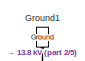
[diagram: root canvas - part 1/5, top left region]
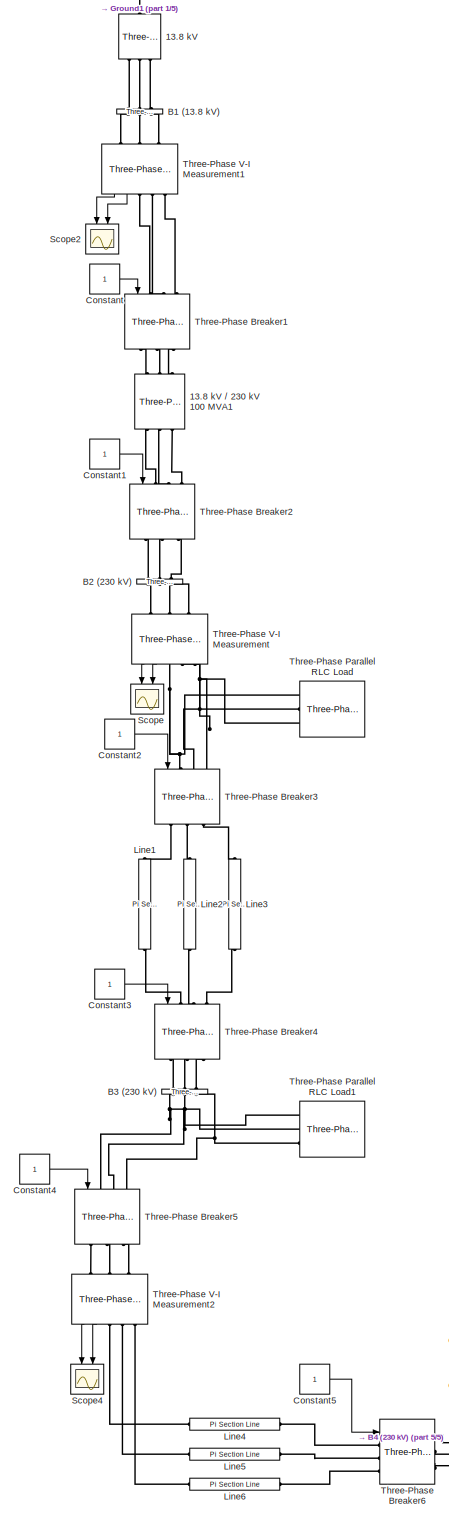
[diagram: root canvas - part 2/5, center side, full height]
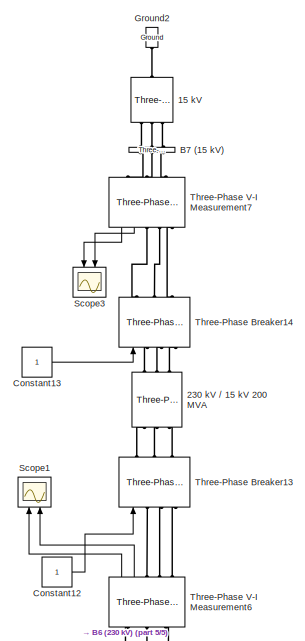
[diagram: root canvas - part 3/5, top right region]
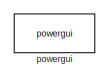
[diagram: root canvas - part 4/5, top left region]
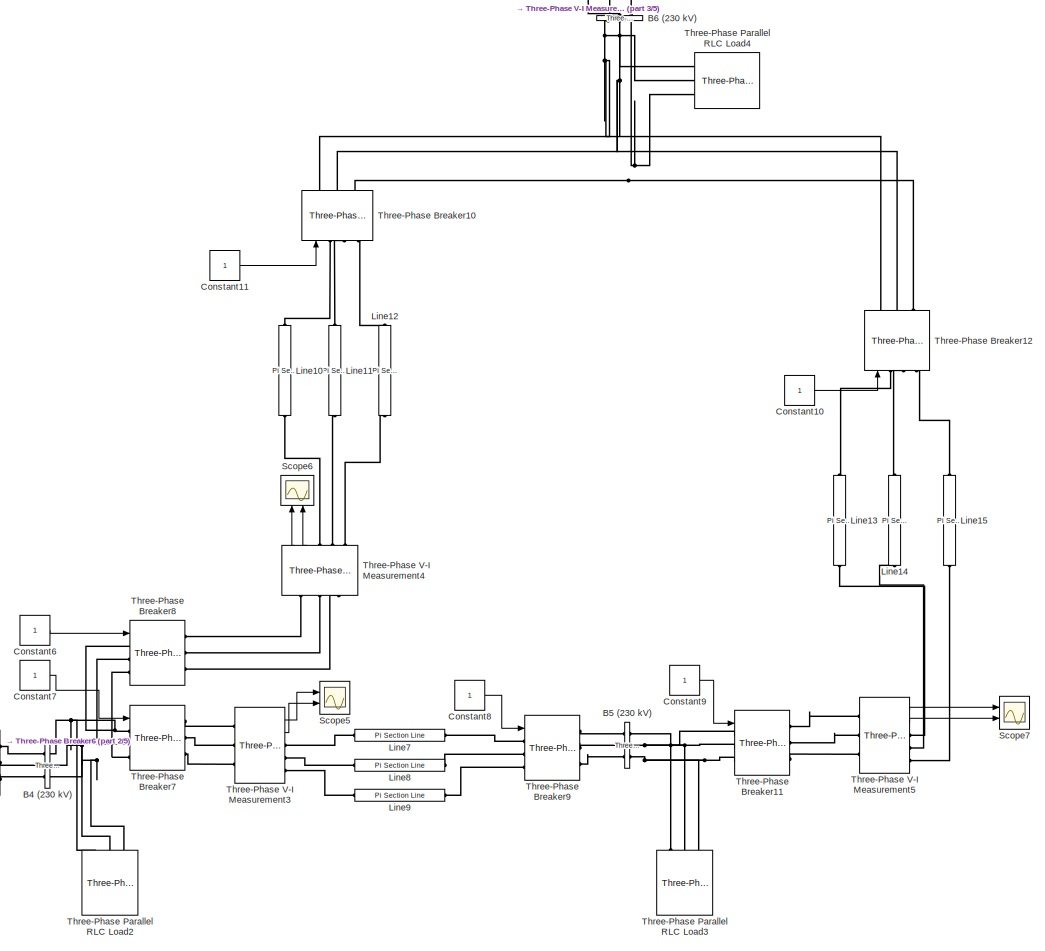
[diagram: root canvas - part 5/5, bottom right region]
MODEL slx_da5e4e727184
KIND model
BLOCK [Reference] 13.8 kV  REF=spsThreePhaseProgrammableVoltageSourceLib/Three-Phase
Programmable
Voltage Source
  Amplitudes = [1 0.75 1.0]
  BusType = PV
  HarmonicA = [1 -0.1 0 2]
  HarmonicB = [2 0.15 35 2]*0
  HarmonicGeneration = off
  Ports = [0, 0, 0, 0, 0, 1, 3]
  PositiveSequence = [13.8e3 0 60]
  Pref = 100e6
  Qmax = inf
  Qmin = -inf
  Qref = 0
  RTWMemSecDataConstants = Inherit from model
  RTWMemSecDataInternal = Inherit from model
  RTWMemSecDataParameters = Inherit from model
  RTWMemSecFuncExecute = Inherit from model
  RTWMemSecFuncInitTerm = Inherit from model
  SourceBlock = spsThreePhaseProgrammableVoltageSourceLib/Three-Phase\nProgrammable\nVoltage Source
  SourceType = Three-Phase Programmable Voltage Source
  TimeValues = [0 0.03 0.13]
  Timing = [0.1  2]
  VariationEntity = Amplitude
  VariationFrequency = 2
  VariationMagnitude = 0.3
  VariationPhaseA = off
  VariationRate = 10
  VariationStep = -0.2
  VariationTiming = [0.05 0.05+5/60]
  VariationType = Table of time-amplitude pairs
  VariationTypeAlt = Step
BLOCK [Reference] 13.8 kV // 230 kV 100 MVA1  REF=spsThreePhaseTransformerTwoWindingsLib/Three-Phase
Transformer
(Two Windings)
  AttributesFormatString = \n
  BreakLoop = off
  CoreType = Three single-phase transformers
  DataFile = 'basic_model'
  DataType = off
  DiscreteSolver = Trapezoidal iterative
  Hysteresis = off
  InitialFluxes = [ 0.8 , -0.8 , 0.7 ]
  L0 = 0.5
  Lm = 500
  Measurements = None
  NominalPower = [100e6 60 ]
  Ports = [0, 0, 0, 0, 0, 3, 3]
  RTWMemSecDataConstants = Inherit from model
  RTWMemSecDataInternal = Inherit from model
  RTWMemSecDataParameters = Inherit from model
  RTWMemSecFuncExecute = Inherit from model
  RTWMemSecFuncInitTerm = Inherit from model
  Rm = 500
  Saturation = [ 0,0  ;  0.005,1.2  ;  1.0,1.4 ]
  SetInitialFlux = off
  SetSaturation = off
  SourceBlock = spsThreePhaseTransformerTwoWindingsLib/Three-Phase\nTransformer\n(Two Windings)
  SourceType = Three-Phase Transformer (Two Windings)
  TransfoNumber = 0
  UNITS = pu
  Winding1 = [ 13.8e3  0.1/30   0.1 ]
  Winding1Connection = Delta (D1)
  Winding2 = [ 230e3  0.1/30  0.1]
  Winding2Connection = Yg
BLOCK [Reference] 15 kV  REF=spsThreePhaseProgrammableVoltageSourceLib/Three-Phase
Programmable
Voltage Source
  Amplitudes = [1 0.75 1.0]
  BusType = PQ
  HarmonicA = [1 -0.1 0 2]
  HarmonicB = [2 0.15 35 2]*0
  HarmonicGeneration = off
  Ports = [0, 0, 0, 0, 0, 1, 3]
  PositiveSequence = [15e3 0 60]
  Pref = 200e6
  Qmax = inf
  Qmin = -inf
  Qref = inf
  RTWMemSecDataConstants = Inherit from model
  RTWMemSecDataInternal = Inherit from model
  RTWMemSecDataParameters = Inherit from model
  RTWMemSecFuncExecute = Inherit from model
  RTWMemSecFuncInitTerm = Inherit from model
  SourceBlock = spsThreePhaseProgrammableVoltageSourceLib/Three-Phase\nProgrammable\nVoltage Source
  SourceType = Three-Phase Programmable Voltage Source
  TimeValues = [0 0.03 0.13]
  Timing = [0.1  2]
  VariationEntity = Amplitude
  VariationFrequency = 2
  VariationMagnitude = 0.3
  VariationPhaseA = off
  VariationRate = 10
  VariationStep = -0.2
  VariationTiming = [0.05 0.05+5/60]
  VariationType = Table of time-amplitude pairs
  VariationTypeAlt = Step
BLOCK [Reference] 230 kV // 15 kV 200 MVA  REF=spsThreePhaseTransformerTwoWindingsLib/Three-Phase
Transformer
(Two Windings)
  AttributesFormatString = \n
  BreakLoop = off
  CoreType = Three single-phase transformers
  DataFile = 'basic_model'
  DataType = off
  DiscreteSolver = Trapezoidal iterative
  Hysteresis = off
  InitialFluxes = [ 0.8 , -0.8 , 0.7 ]
  L0 = 0.5
  Lm = 500
  Measurements = None
  NominalPower = [200e6 60 ]
  Ports = [0, 0, 0, 0, 0, 3, 3]
  RTWMemSecDataConstants = Inherit from model
  RTWMemSecDataInternal = Inherit from model
  RTWMemSecDataParameters = Inherit from model
  RTWMemSecFuncExecute = Inherit from model
  RTWMemSecFuncInitTerm = Inherit from model
  Rm = 500
  Saturation = [ 0,0  ;  0.005,1.2  ;  1.0,1.4 ]
  SetInitialFlux = off
  SetSaturation = off
  SourceBlock = spsThreePhaseTransformerTwoWindingsLib/Three-Phase\nTransformer\n(Two Windings)
  SourceType = Three-Phase Transformer (Two Windings)
  TransfoNumber = 0
  UNITS = pu
  Winding1 = [ 15e3  0.1/30   0.1 ]
  Winding1Connection = Delta (D1)
  Winding2 = [ 230e3  0.1/30  0.1]
  Winding2Connection = Yg
BLOCK [Reference] B1 (13.8 kV)  REF=spsThreePhaseVIMeasurementLib/Three-Phase
V-I Measurement
  CurrentMeasurement = no
  Ipu = off
  LabelI = Iabc_B120
  LabelV = Vabc_B120
  OutputType = Complex
  PSBequivalent = 0
  Pbase = 100e6
  PhasorSimulation = off
  Ports = [0, 0, 0, 0, 0, 3, 3]
  RTWMemSecDataConstants = Inherit from model
  RTWMemSecDataInternal = Inherit from model
  RTWMemSecDataParameters = Inherit from model
  RTWMemSecFuncExecute = Inherit from model
  RTWMemSecFuncInitTerm = Inherit from model
  SetLabelI = on
  SetLabelV = off
  SourceBlock = spsThreePhaseVIMeasurementLib/Three-Phase\nV-I Measurement
  SourceType = Three-Phase VI Measurement
  Vbase = 120e3
  VoltageMeasurement = no
  Vpu = off
  VpuLL = off
BLOCK [Reference] B2 (230 kV)  REF=spsThreePhaseVIMeasurementLib/Three-Phase
V-I Measurement
  CurrentMeasurement = no
  Ipu = off
  LabelI = Iabc_B120
  LabelV = Vabc_B120
  OutputType = Complex
  PSBequivalent = 0
  Pbase = 100e6
  PhasorSimulation = off
  Ports = [0, 0, 0, 0, 0, 3, 3]
  RTWMemSecDataConstants = Inherit from model
  RTWMemSecDataInternal = Inherit from model
  RTWMemSecDataParameters = Inherit from model
  RTWMemSecFuncExecute = Inherit from model
  RTWMemSecFuncInitTerm = Inherit from model
  SetLabelI = on
  SetLabelV = off
  SourceBlock = spsThreePhaseVIMeasurementLib/Three-Phase\nV-I Measurement
  SourceType = Three-Phase VI Measurement
  Vbase = 120e3
  VoltageMeasurement = no
  Vpu = off
  VpuLL = off
BLOCK [Reference] B3 (230 kV)  REF=spsThreePhaseVIMeasurementLib/Three-Phase
V-I Measurement
  CurrentMeasurement = no
  Ipu = off
  LabelI = Iabc_B120
  LabelV = Vabc_B120
  OutputType = Complex
  PSBequivalent = 0
  Pbase = 100e6
  PhasorSimulation = off
  Ports = [0, 0, 0, 0, 0, 3, 3]
  RTWMemSecDataConstants = Inherit from model
  RTWMemSecDataInternal = Inherit from model
  RTWMemSecDataParameters = Inherit from model
  RTWMemSecFuncExecute = Inherit from model
  RTWMemSecFuncInitTerm = Inherit from model
  SetLabelI = on
  SetLabelV = off
  SourceBlock = spsThreePhaseVIMeasurementLib/Three-Phase\nV-I Measurement
  SourceType = Three-Phase VI Measurement
  Vbase = 120e3
  VoltageMeasurement = no
  Vpu = off
  VpuLL = off
BLOCK [Reference] B4 (230 kV)  REF=spsThreePhaseVIMeasurementLib/Three-Phase
V-I Measurement
  CurrentMeasurement = no
  Ipu = off
  LabelI = Iabc_B120
  LabelV = Vabc_B120
  OutputType = Complex
  PSBequivalent = 0
  Pbase = 100e6
  PhasorSimulation = off
  Ports = [0, 0, 0, 0, 0, 3, 3]
  RTWMemSecDataConstants = Inherit from model
  RTWMemSecDataInternal = Inherit from model
  RTWMemSecDataParameters = Inherit from model
  RTWMemSecFuncExecute = Inherit from model
  RTWMemSecFuncInitTerm = Inherit from model
  SetLabelI = on
  SetLabelV = off
  SourceBlock = spsThreePhaseVIMeasurementLib/Three-Phase\nV-I Measurement
  SourceType = Three-Phase VI Measurement
  Vbase = 120e3
  VoltageMeasurement = no
  Vpu = off
  VpuLL = off
BLOCK [Reference] B5 (230 kV)  REF=spsThreePhaseVIMeasurementLib/Three-Phase
V-I Measurement
  CurrentMeasurement = no
  Ipu = off
  LabelI = Iabc_B120
  LabelV = Vabc_B120
  OutputType = Complex
  PSBequivalent = 0
  Pbase = 100e6
  PhasorSimulation = off
  Ports = [0, 0, 0, 0, 0, 3, 3]
  RTWMemSecDataConstants = Inherit from model
  RTWMemSecDataInternal = Inherit from model
  RTWMemSecDataParameters = Inherit from model
  RTWMemSecFuncExecute = Inherit from model
  RTWMemSecFuncInitTerm = Inherit from model
  SetLabelI = on
  SetLabelV = off
  SourceBlock = spsThreePhaseVIMeasurementLib/Three-Phase\nV-I Measurement
  SourceType = Three-Phase VI Measurement
  Vbase = 120e3
  VoltageMeasurement = no
  Vpu = off
  VpuLL = off
BLOCK [Reference] B6 (230 kV)  REF=spsThreePhaseVIMeasurementLib/Three-Phase
V-I Measurement
  CurrentMeasurement = no
  Ipu = off
  LabelI = Iabc_B120
  LabelV = Vabc_B120
  OutputType = Complex
  PSBequivalent = 0
  Pbase = 100e6
  PhasorSimulation = off
  Ports = [0, 0, 0, 0, 0, 3, 3]
  RTWMemSecDataConstants = Inherit from model
  RTWMemSecDataInternal = Inherit from model
  RTWMemSecDataParameters = Inherit from model
  RTWMemSecFuncExecute = Inherit from model
  RTWMemSecFuncInitTerm = Inherit from model
  SetLabelI = on
  SetLabelV = off
  SourceBlock = spsThreePhaseVIMeasurementLib/Three-Phase\nV-I Measurement
  SourceType = Three-Phase VI Measurement
  Vbase = 120e3
  VoltageMeasurement = no
  Vpu = off
  VpuLL = off
BLOCK [Reference] B7 (15 kV)  REF=spsThreePhaseVIMeasurementLib/Three-Phase
V-I Measurement
  CurrentMeasurement = no
  Ipu = off
  LabelI = Iabc_B120
  LabelV = Vabc_B120
  OutputType = Complex
  PSBequivalent = 0
  Pbase = 100e6
  PhasorSimulation = off
  Ports = [0, 0, 0, 0, 0, 3, 3]
  RTWMemSecDataConstants = Inherit from model
  RTWMemSecDataInternal = Inherit from model
  RTWMemSecDataParameters = Inherit from model
  RTWMemSecFuncExecute = Inherit from model
  RTWMemSecFuncInitTerm = Inherit from model
  SetLabelI = on
  SetLabelV = off
  SourceBlock = spsThreePhaseVIMeasurementLib/Three-Phase\nV-I Measurement
  SourceType = Three-Phase VI Measurement
  Vbase = 120e3
  VoltageMeasurement = no
  Vpu = off
  VpuLL = off
BLOCK [Constant] Constant
BLOCK [Constant] Constant1
BLOCK [Constant] Constant10
BLOCK [Constant] Constant11
BLOCK [Constant] Constant12
BLOCK [Constant] Constant13
BLOCK [Constant] Constant2
BLOCK [Constant] Constant3
BLOCK [Constant] Constant4
BLOCK [Constant] Constant5
BLOCK [Constant] Constant6
BLOCK [Constant] Constant7
BLOCK [Constant] Constant8
BLOCK [Constant] Constant9
BLOCK [Reference] Ground1  REF=spsGroundLib/Ground
  AttributesFormatString = \n
  LConnTagsString = a
  Ports = [0, 0, 0, 0, 0, 1]
  SourceBlock = spsGroundLib/Ground
  SourceType = Ground
BLOCK [Reference] Ground2  REF=spsGroundLib/Ground
  AttributesFormatString = \n
  LConnTagsString = a
  Ports = [0, 0, 0, 0, 0, 1]
  SourceBlock = spsGroundLib/Ground
  SourceType = Ground
BLOCK [Reference] Line1  REF=spsPiSectionLineLib/Pi Section Line
  AttributesFormatString = \n
  Capacitance = 1e-6
  Frequency = 50
  Inductance = .0016
  LConnTagsString = __new0
  Length = 15
  Measurements = None
  Measurements2 = None
  Phases = 1
  PiSections = 2
  Ports = [0, 0, 0, 0, 0, 1, 1]
  RConnTagsString = __new0
  Resistance = .08
  SourceBlock = spsPiSectionLineLib/Pi Section Line
  SourceType = Pi Section Line
BLOCK [Reference] Line10  REF=spsPiSectionLineLib/Pi Section Line
  AttributesFormatString = \n
  Capacitance = 1e-6
  Frequency = 50
  Inductance = .0016
  LConnTagsString = __new0
  Length = 50
  Measurements = None
  Measurements2 = None
  Phases = 1
  PiSections = 2
  Ports = [0, 0, 0, 0, 0, 1, 1]
  RConnTagsString = __new0
  Resistance = .08
  SourceBlock = spsPiSectionLineLib/Pi Section Line
  SourceType = Pi Section Line
BLOCK [Reference] Line11  REF=spsPiSectionLineLib/Pi Section Line
  AttributesFormatString = \n
  Capacitance = 1e-6
  Frequency = 50
  Inductance = .0016
  LConnTagsString = __new0
  Length = 50
  Measurements = None
  Measurements2 = None
  Phases = 1
  PiSections = 2
  Ports = [0, 0, 0, 0, 0, 1, 1]
  RConnTagsString = __new0
  Resistance = .08
  SourceBlock = spsPiSectionLineLib/Pi Section Line
  SourceType = Pi Section Line
BLOCK [Reference] Line12  REF=spsPiSectionLineLib/Pi Section Line
  AttributesFormatString = \n
  Capacitance = 1e-6
  Frequency = 50
  Inductance = .0016
  LConnTagsString = __new0
  Length = 50
  Measurements = None
  Measurements2 = None
  Phases = 1
  PiSections = 2
  Ports = [0, 0, 0, 0, 0, 1, 1]
  RConnTagsString = __new0
  Resistance = .08
  SourceBlock = spsPiSectionLineLib/Pi Section Line
  SourceType = Pi Section Line
BLOCK [Reference] Line13  REF=spsPiSectionLineLib/Pi Section Line
  AttributesFormatString = \n
  Capacitance = 1e-6
  Frequency = 50
  Inductance = .0016
  LConnTagsString = __new0
  Length = 15
  Measurements = None
  Measurements2 = None
  Phases = 1
  PiSections = 2
  Ports = [0, 0, 0, 0, 0, 1, 1]
  RConnTagsString = __new0
  Resistance = .08
  SourceBlock = spsPiSectionLineLib/Pi Section Line
  SourceType = Pi Section Line
BLOCK [Reference] Line14  REF=spsPiSectionLineLib/Pi Section Line
  AttributesFormatString = \n
  Capacitance = 1e-6
  Frequency = 50
  Inductance = .0016
  LConnTagsString = __new0
  Length = 15
  Measurements = None
  Measurements2 = None
  Phases = 1
  PiSections = 2
  Ports = [0, 0, 0, 0, 0, 1, 1]
  RConnTagsString = __new0
  Resistance = .08
  SourceBlock = spsPiSectionLineLib/Pi Section Line
  SourceType = Pi Section Line
BLOCK [Reference] Line15  REF=spsPiSectionLineLib/Pi Section Line
  AttributesFormatString = \n
  Capacitance = 1e-6
  Frequency = 50
  Inductance = .0016
  LConnTagsString = __new0
  Length = 15
  Measurements = None
  Measurements2 = None
  Phases = 1
  PiSections = 2
  Ports = [0, 0, 0, 0, 0, 1, 1]
  RConnTagsString = __new0
  Resistance = .08
  SourceBlock = spsPiSectionLineLib/Pi Section Line
  SourceType = Pi Section Line
BLOCK [Reference] Line2  REF=spsPiSectionLineLib/Pi Section Line
  AttributesFormatString = \n
  Capacitance = 1e-6
  Frequency = 50
  Inductance = .0016
  LConnTagsString = __new0
  Length = 15
  Measurements = None
  Measurements2 = None
  Phases = 1
  PiSections = 2
  Ports = [0, 0, 0, 0, 0, 1, 1]
  RConnTagsString = __new0
  Resistance = .08
  SourceBlock = spsPiSectionLineLib/Pi Section Line
  SourceType = Pi Section Line
BLOCK [Reference] Line3  REF=spsPiSectionLineLib/Pi Section Line
  AttributesFormatString = \n
  Capacitance = 1e-6
  Frequency = 50
  Inductance = .0016
  LConnTagsString = __new0
  Length = 15
  Measurements = None
  Measurements2 = None
  Phases = 1
  PiSections = 2
  Ports = [0, 0, 0, 0, 0, 1, 1]
  RConnTagsString = __new0
  Resistance = .08
  SourceBlock = spsPiSectionLineLib/Pi Section Line
  SourceType = Pi Section Line
BLOCK [Reference] Line4  REF=spsPiSectionLineLib/Pi Section Line
  AttributesFormatString = \n
  Capacitance = 1e-6
  Frequency = 50
  Inductance = .0016
  LConnTagsString = __new0
  Length = 30
  Measurements = None
  Measurements2 = None
  Phases = 1
  PiSections = 2
  Ports = [0, 0, 0, 0, 0, 1, 1]
  RConnTagsString = __new0
  Resistance = .08
  SourceBlock = spsPiSectionLineLib/Pi Section Line
  SourceType = Pi Section Line
BLOCK [Reference] Line5  REF=spsPiSectionLineLib/Pi Section Line
  AttributesFormatString = \n
  Capacitance = 1e-6
  Frequency = 50
  Inductance = .0016
  LConnTagsString = __new0
  Length = 30
  Measurements = None
  Measurements2 = None
  Phases = 1
  PiSections = 2
  Ports = [0, 0, 0, 0, 0, 1, 1]
  RConnTagsString = __new0
  Resistance = .08
  SourceBlock = spsPiSectionLineLib/Pi Section Line
  SourceType = Pi Section Line
BLOCK [Reference] Line6  REF=spsPiSectionLineLib/Pi Section Line
  AttributesFormatString = \n
  Capacitance = 1e-6
  Frequency = 50
  Inductance = .0016
  LConnTagsString = __new0
  Length = 30
  Measurements = None
  Measurements2 = None
  Phases = 1
  PiSections = 2
  Ports = [0, 0, 0, 0, 0, 1, 1]
  RConnTagsString = __new0
  Resistance = .08
  SourceBlock = spsPiSectionLineLib/Pi Section Line
  SourceType = Pi Section Line
BLOCK [Reference] Line7  REF=spsPiSectionLineLib/Pi Section Line
  AttributesFormatString = \n
  Capacitance = 1e-6
  Frequency = 50
  Inductance = .0016
  LConnTagsString = __new0
  Length = 40
  Measurements = None
  Measurements2 = None
  Phases = 1
  PiSections = 2
  Ports = [0, 0, 0, 0, 0, 1, 1]
  RConnTagsString = __new0
  Resistance = .08
  SourceBlock = spsPiSectionLineLib/Pi Section Line
  SourceType = Pi Section Line
BLOCK [Reference] Line8  REF=spsPiSectionLineLib/Pi Section Line
  AttributesFormatString = \n
  Capacitance = 1e-6
  Frequency = 50
  Inductance = .0016
  LConnTagsString = __new0
  Length = 40
  Measurements = None
  Measurements2 = None
  Phases = 1
  PiSections = 2
  Ports = [0, 0, 0, 0, 0, 1, 1]
  RConnTagsString = __new0
  Resistance = .08
  SourceBlock = spsPiSectionLineLib/Pi Section Line
  SourceType = Pi Section Line
BLOCK [Reference] Line9  REF=spsPiSectionLineLib/Pi Section Line
  AttributesFormatString = \n
  Capacitance = 1e-6
  Frequency = 50
  Inductance = .0016
  LConnTagsString = __new0
  Length = 40
  Measurements = None
  Measurements2 = None
  Phases = 1
  PiSections = 2
  Ports = [0, 0, 0, 0, 0, 1, 1]
  RConnTagsString = __new0
  Resistance = .08
  SourceBlock = spsPiSectionLineLib/Pi Section Line
  SourceType = Pi Section Line
BLOCK [Scope] Scope
  DataFormat = StructureWithTime
  Decimation = 1
  Floating = off
  Grid = on
  LimitDataPoints = off
  MaxDataPoints = 5000
  NumInputPorts = 2
  Ports = [2]
  SampleInput = off
  SampleTime = -1
  SaveName = ScopeData1
  SaveToWorkspace = off
  ShowLegends = off
  TickLabels = OneTimeTick
  TimeRange = auto
  YMax = 5~5
  YMin = -5~-5
  ZoomMode = on
BLOCK [Scope] Scope1
  DataFormat = StructureWithTime
  Decimation = 1
  Floating = off
  Grid = on
  LimitDataPoints = off
  MaxDataPoints = 5000
  NumInputPorts = 2
  Ports = [2]
  SampleInput = off
  SampleTime = -1
  SaveName = ScopeData2
  SaveToWorkspace = off
  ShowLegends = off
  TickLabels = OneTimeTick
  TimeRange = auto
  YMax = 5~5
  YMin = -5~-5
  ZoomMode = on
BLOCK [Scope] Scope2
  DataFormat = StructureWithTime
  Decimation = 1
  Floating = off
  Grid = on
  LimitDataPoints = off
  MaxDataPoints = 5000
  NumInputPorts = 2
  Ports = [2]
  SampleInput = off
  SampleTime = -1
  SaveName = ScopeData3
  SaveToWorkspace = off
  ShowLegends = off
  TickLabels = OneTimeTick
  TimeRange = auto
  YMax = 24395.18395~68433.69318
  YMin = -24395.18395~-69245.32679
  ZoomMode = on
BLOCK [Scope] Scope3
  DataFormat = StructureWithTime
  Decimation = 1
  Floating = off
  Grid = on
  LimitDataPoints = off
  MaxDataPoints = 5000
  NumInputPorts = 2
  Ports = [2]
  SampleInput = off
  SampleTime = -1
  SaveName = ScopeData4
  SaveToWorkspace = off
  ShowLegends = off
  TickLabels = OneTimeTick
  TimeRange = auto
  YMax = 5~5
  YMin = -5~-5
  ZoomMode = on
BLOCK [Scope] Scope4
  DataFormat = StructureWithTime
  Decimation = 1
  Floating = off
  Grid = on
  LimitDataPoints = off
  MaxDataPoints = 5000
  NumInputPorts = 2
  Ports = [2]
  SampleInput = off
  SampleTime = -1
  SaveName = ScopeData5
  SaveToWorkspace = off
  ShowLegends = off
  TickLabels = OneTimeTick
  TimeRange = auto
  YMax = 5~5
  YMin = -5~-5
  ZoomMode = on
BLOCK [Scope] Scope5
  DataFormat = StructureWithTime
  Decimation = 1
  Floating = off
  Grid = on
  LimitDataPoints = off
  MaxDataPoints = 5000
  NumInputPorts = 2
  Ports = [2]
  SampleInput = off
  SampleTime = -1
  SaveName = ScopeData6
  SaveToWorkspace = off
  ShowLegends = off
  TickLabels = OneTimeTick
  TimeRange = auto
  YMax = 5~5
  YMin = -5~-5
  ZoomMode = on
BLOCK [Scope] Scope6
  DataFormat = StructureWithTime
  Decimation = 1
  Floating = off
  Grid = on
  LimitDataPoints = off
  MaxDataPoints = 5000
  NumInputPorts = 2
  Ports = [2]
  SampleInput = off
  SampleTime = -1
  SaveName = ScopeData7
  SaveToWorkspace = off
  ShowLegends = off
  TickLabels = OneTimeTick
  TimeRange = auto
  YMax = 5~5
  YMin = -5~-5
  ZoomMode = on
BLOCK [Scope] Scope7
  DataFormat = StructureWithTime
  Decimation = 1
  Floating = off
  Grid = on
  LimitDataPoints = off
  MaxDataPoints = 5000
  NumInputPorts = 2
  Ports = [2]
  SampleInput = off
  SampleTime = -1
  SaveName = ScopeData
  SaveToWorkspace = off
  ShowLegends = off
  TickLabels = OneTimeTick
  TimeRange = auto
  YMax = 5~5
  YMin = -5~-5
  ZoomMode = on
BLOCK [Reference] Three-Phase Breaker1  REF=spsThreePhaseBreakerLib/Three-Phase Breaker
  BreakerResistance = 0.001
  External = on
  InitialState = closed
  Measurements = None
  Ports = [1, 0, 0, 0, 0, 3, 3]
  RTWMemSecDataConstants = Inherit from model
  RTWMemSecDataInternal = Inherit from model
  RTWMemSecDataParameters = Inherit from model
  RTWMemSecFuncExecute = Inherit from model
  RTWMemSecFuncInitTerm = Inherit from model
  SnubberCapacitance = inf
  SnubberResistance = 1e6
  SourceBlock = spsThreePhaseBreakerLib/Three-Phase Breaker
  SourceType = Three-Phase Breaker
  SwitchA = on
  SwitchB = on
  SwitchC = on
  SwitchTimes = [4/60  10/60]
BLOCK [Reference] Three-Phase Breaker10  REF=spsThreePhaseBreakerLib/Three-Phase Breaker
  BreakerResistance = 0.001
  External = on
  InitialState = closed
  Measurements = None
  Ports = [1, 0, 0, 0, 0, 3, 3]
  RTWMemSecDataConstants = Inherit from model
  RTWMemSecDataInternal = Inherit from model
  RTWMemSecDataParameters = Inherit from model
  RTWMemSecFuncExecute = Inherit from model
  RTWMemSecFuncInitTerm = Inherit from model
  SnubberCapacitance = inf
  SnubberResistance = 1e6
  SourceBlock = spsThreePhaseBreakerLib/Three-Phase Breaker
  SourceType = Three-Phase Breaker
  SwitchA = on
  SwitchB = on
  SwitchC = on
  SwitchTimes = [4/60  10/60]
BLOCK [Reference] Three-Phase Breaker11  REF=spsThreePhaseBreakerLib/Three-Phase Breaker
  BreakerResistance = 0.001
  External = on
  InitialState = closed
  Measurements = None
  Ports = [1, 0, 0, 0, 0, 3, 3]
  RTWMemSecDataConstants = Inherit from model
  RTWMemSecDataInternal = Inherit from model
  RTWMemSecDataParameters = Inherit from model
  RTWMemSecFuncExecute = Inherit from model
  RTWMemSecFuncInitTerm = Inherit from model
  SnubberCapacitance = inf
  SnubberResistance = 1e6
  SourceBlock = spsThreePhaseBreakerLib/Three-Phase Breaker
  SourceType = Three-Phase Breaker
  SwitchA = on
  SwitchB = on
  SwitchC = on
  SwitchTimes = [4/60  10/60]
BLOCK [Reference] Three-Phase Breaker12  REF=spsThreePhaseBreakerLib/Three-Phase Breaker
  BreakerResistance = 0.001
  External = on
  InitialState = closed
  Measurements = None
  Ports = [1, 0, 0, 0, 0, 3, 3]
  RTWMemSecDataConstants = Inherit from model
  RTWMemSecDataInternal = Inherit from model
  RTWMemSecDataParameters = Inherit from model
  RTWMemSecFuncExecute = Inherit from model
  RTWMemSecFuncInitTerm = Inherit from model
  SnubberCapacitance = inf
  SnubberResistance = 1e6
  SourceBlock = spsThreePhaseBreakerLib/Three-Phase Breaker
  SourceType = Three-Phase Breaker
  SwitchA = on
  SwitchB = on
  SwitchC = on
  SwitchTimes = [4/60  10/60]
BLOCK [Reference] Three-Phase Breaker13  REF=spsThreePhaseBreakerLib/Three-Phase Breaker
  BreakerResistance = 0.001
  External = on
  InitialState = closed
  Measurements = None
  Ports = [1, 0, 0, 0, 0, 3, 3]
  RTWMemSecDataConstants = Inherit from model
  RTWMemSecDataInternal = Inherit from model
  RTWMemSecDataParameters = Inherit from model
  RTWMemSecFuncExecute = Inherit from model
  RTWMemSecFuncInitTerm = Inherit from model
  SnubberCapacitance = inf
  SnubberResistance = 1e6
  SourceBlock = spsThreePhaseBreakerLib/Three-Phase Breaker
  SourceType = Three-Phase Breaker
  SwitchA = on
  SwitchB = on
  SwitchC = on
  SwitchTimes = [4/60  10/60]
BLOCK [Reference] Three-Phase Breaker14  REF=spsThreePhaseBreakerLib/Three-Phase Breaker
  BreakerResistance = 0.001
  External = on
  InitialState = closed
  Measurements = None
  Ports = [1, 0, 0, 0, 0, 3, 3]
  RTWMemSecDataConstants = Inherit from model
  RTWMemSecDataInternal = Inherit from model
  RTWMemSecDataParameters = Inherit from model
  RTWMemSecFuncExecute = Inherit from model
  RTWMemSecFuncInitTerm = Inherit from model
  SnubberCapacitance = inf
  SnubberResistance = 1e6
  SourceBlock = spsThreePhaseBreakerLib/Three-Phase Breaker
  SourceType = Three-Phase Breaker
  SwitchA = on
  SwitchB = on
  SwitchC = on
  SwitchTimes = [4/60  10/60]
BLOCK [Reference] Three-Phase Breaker2  REF=spsThreePhaseBreakerLib/Three-Phase Breaker
  BreakerResistance = 0.001
  External = on
  InitialState = closed
  Measurements = None
  Ports = [1, 0, 0, 0, 0, 3, 3]
  RTWMemSecDataConstants = Inherit from model
  RTWMemSecDataInternal = Inherit from model
  RTWMemSecDataParameters = Inherit from model
  RTWMemSecFuncExecute = Inherit from model
  RTWMemSecFuncInitTerm = Inherit from model
  SnubberCapacitance = inf
  SnubberResistance = 1e6
  SourceBlock = spsThreePhaseBreakerLib/Three-Phase Breaker
  SourceType = Three-Phase Breaker
  SwitchA = on
  SwitchB = on
  SwitchC = on
  SwitchTimes = [4/60  10/60]
BLOCK [Reference] Three-Phase Breaker3  REF=spsThreePhaseBreakerLib/Three-Phase Breaker
  BreakerResistance = 0.001
  External = on
  InitialState = closed
  Measurements = None
  Ports = [1, 0, 0, 0, 0, 3, 3]
  RTWMemSecDataConstants = Inherit from model
  RTWMemSecDataInternal = Inherit from model
  RTWMemSecDataParameters = Inherit from model
  RTWMemSecFuncExecute = Inherit from model
  RTWMemSecFuncInitTerm = Inherit from model
  SnubberCapacitance = inf
  SnubberResistance = 1e6
  SourceBlock = spsThreePhaseBreakerLib/Three-Phase Breaker
  SourceType = Three-Phase Breaker
  SwitchA = on
  SwitchB = on
  SwitchC = on
  SwitchTimes = [4/60  10/60]
BLOCK [Reference] Three-Phase Breaker4  REF=spsThreePhaseBreakerLib/Three-Phase Breaker
  BreakerResistance = 0.001
  External = on
  InitialState = closed
  Measurements = None
  Ports = [1, 0, 0, 0, 0, 3, 3]
  RTWMemSecDataConstants = Inherit from model
  RTWMemSecDataInternal = Inherit from model
  RTWMemSecDataParameters = Inherit from model
  RTWMemSecFuncExecute = Inherit from model
  RTWMemSecFuncInitTerm = Inherit from model
  SnubberCapacitance = inf
  SnubberResistance = 1e6
  SourceBlock = spsThreePhaseBreakerLib/Three-Phase Breaker
  SourceType = Three-Phase Breaker
  SwitchA = on
  SwitchB = on
  SwitchC = on
  SwitchTimes = [4/60  10/60]
BLOCK [Reference] Three-Phase Breaker5  REF=spsThreePhaseBreakerLib/Three-Phase Breaker
  BreakerResistance = 0.001
  External = on
  InitialState = closed
  Measurements = None
  Ports = [1, 0, 0, 0, 0, 3, 3]
  RTWMemSecDataConstants = Inherit from model
  RTWMemSecDataInternal = Inherit from model
  RTWMemSecDataParameters = Inherit from model
  RTWMemSecFuncExecute = Inherit from model
  RTWMemSecFuncInitTerm = Inherit from model
  SnubberCapacitance = inf
  SnubberResistance = 1e6
  SourceBlock = spsThreePhaseBreakerLib/Three-Phase Breaker
  SourceType = Three-Phase Breaker
  SwitchA = on
  SwitchB = on
  SwitchC = on
  SwitchTimes = [4/60  10/60]
BLOCK [Reference] Three-Phase Breaker6  REF=spsThreePhaseBreakerLib/Three-Phase Breaker
  BreakerResistance = 0.001
  External = on
  InitialState = closed
  Measurements = None
  Ports = [1, 0, 0, 0, 0, 3, 3]
  RTWMemSecDataConstants = Inherit from model
  RTWMemSecDataInternal = Inherit from model
  RTWMemSecDataParameters = Inherit from model
  RTWMemSecFuncExecute = Inherit from model
  RTWMemSecFuncInitTerm = Inherit from model
  SnubberCapacitance = inf
  SnubberResistance = 1e6
  SourceBlock = spsThreePhaseBreakerLib/Three-Phase Breaker
  SourceType = Three-Phase Breaker
  SwitchA = on
  SwitchB = on
  SwitchC = on
  SwitchTimes = [4/60  10/60]
BLOCK [Reference] Three-Phase Breaker7  REF=spsThreePhaseBreakerLib/Three-Phase Breaker
  BreakerResistance = 0.001
  External = on
  InitialState = closed
  Measurements = None
  Ports = [1, 0, 0, 0, 0, 3, 3]
  RTWMemSecDataConstants = Inherit from model
  RTWMemSecDataInternal = Inherit from model
  RTWMemSecDataParameters = Inherit from model
  RTWMemSecFuncExecute = Inherit from model
  RTWMemSecFuncInitTerm = Inherit from model
  SnubberCapacitance = inf
  SnubberResistance = 1e6
  SourceBlock = spsThreePhaseBreakerLib/Three-Phase Breaker
  SourceType = Three-Phase Breaker
  SwitchA = on
  SwitchB = on
  SwitchC = on
  SwitchTimes = [4/60  10/60]
BLOCK [Reference] Three-Phase Breaker8  REF=spsThreePhaseBreakerLib/Three-Phase Breaker
  BreakerResistance = 0.001
  External = on
  InitialState = closed
  Measurements = None
  Ports = [1, 0, 0, 0, 0, 3, 3]
  RTWMemSecDataConstants = Inherit from model
  RTWMemSecDataInternal = Inherit from model
  RTWMemSecDataParameters = Inherit from model
  RTWMemSecFuncExecute = Inherit from model
  RTWMemSecFuncInitTerm = Inherit from model
  SnubberCapacitance = inf
  SnubberResistance = 1e6
  SourceBlock = spsThreePhaseBreakerLib/Three-Phase Breaker
  SourceType = Three-Phase Breaker
  SwitchA = on
  SwitchB = on
  SwitchC = on
  SwitchTimes = [4/60  10/60]
BLOCK [Reference] Three-Phase Breaker9  REF=spsThreePhaseBreakerLib/Three-Phase Breaker
  BreakerResistance = 0.001
  External = on
  InitialState = closed
  Measurements = None
  Ports = [1, 0, 0, 0, 0, 3, 3]
  RTWMemSecDataConstants = Inherit from model
  RTWMemSecDataInternal = Inherit from model
  RTWMemSecDataParameters = Inherit from model
  RTWMemSecFuncExecute = Inherit from model
  RTWMemSecFuncInitTerm = Inherit from model
  SnubberCapacitance = inf
  SnubberResistance = 1e6
  SourceBlock = spsThreePhaseBreakerLib/Three-Phase Breaker
  SourceType = Three-Phase Breaker
  SwitchA = on
  SwitchB = on
  SwitchC = on
  SwitchTimes = [4/60  10/60]
BLOCK [Reference] Three-Phase Parallel RLC Load  REF=spsThreePhaseParallelRLCLoadLib/Three-Phase
Parallel RLC Load
  ActivePower = 50e3
  AttributesFormatString = \n
  CapacitivePower = 0
  Configuration = Y (grounded)
  InductivePower = 30e3
  LConnTagsString = A|B|C
  LoadType = constant Z
  Measurements = None
  NominalFrequency = 60
  NominalVoltage = 230e3
  Pabc = [10e3 9e3 11e3]
  Pabcp = [10e3 9e3 11e3]
  Ports = [0, 0, 0, 0, 0, 3]
  QCabc = [100 90 110]
  QCabcp = [100 90 110]
  QLabc = [100 90 110]
  QLabcp = [100 90 110]
  SourceBlock = spsThreePhaseParallelRLCLoadLib/Three-Phase\nParallel RLC Load
  SourceType = Three-Phase Parallel RLC Load
  UnbalancedPower = off
  Vabc = [1e3 1e3 1e3]
  Vabcp = [1e3 1e3 1e3]
BLOCK [Reference] Three-Phase Parallel RLC Load1  REF=spsThreePhaseParallelRLCLoadLib/Three-Phase
Parallel RLC Load
  ActivePower = 50e3
  AttributesFormatString = \n
  CapacitivePower = 0
  Configuration = Y (grounded)
  InductivePower = 30e3
  LConnTagsString = A|B|C
  LoadType = constant Z
  Measurements = None
  NominalFrequency = 60
  NominalVoltage = 230e3
  Pabc = [10e3 9e3 11e3]
  Pabcp = [10e3 9e3 11e3]
  Ports = [0, 0, 0, 0, 0, 3]
  QCabc = [100 90 110]
  QCabcp = [100 90 110]
  QLabc = [100 90 110]
  QLabcp = [100 90 110]
  SourceBlock = spsThreePhaseParallelRLCLoadLib/Three-Phase\nParallel RLC Load
  SourceType = Three-Phase Parallel RLC Load
  UnbalancedPower = off
  Vabc = [1e3 1e3 1e3]
  Vabcp = [1e3 1e3 1e3]
BLOCK [Reference] Three-Phase Parallel RLC Load2  REF=spsThreePhaseParallelRLCLoadLib/Three-Phase
Parallel RLC Load
  ActivePower = 50e3
  AttributesFormatString = \n
  CapacitivePower = 0
  Configuration = Y (grounded)
  InductivePower = 30e3
  LConnTagsString = A|B|C
  LoadType = constant Z
  Measurements = None
  NominalFrequency = 60
  NominalVoltage = 230e3
  Pabc = [10e3 9e3 11e3]
  Pabcp = [10e3 9e3 11e3]
  Ports = [0, 0, 0, 0, 0, 3]
  QCabc = [100 90 110]
  QCabcp = [100 90 110]
  QLabc = [100 90 110]
  QLabcp = [100 90 110]
  SourceBlock = spsThreePhaseParallelRLCLoadLib/Three-Phase\nParallel RLC Load
  SourceType = Three-Phase Parallel RLC Load
  UnbalancedPower = off
  Vabc = [1e3 1e3 1e3]
  Vabcp = [1e3 1e3 1e3]
BLOCK [Reference] Three-Phase Parallel RLC Load3  REF=spsThreePhaseParallelRLCLoadLib/Three-Phase
Parallel RLC Load
  ActivePower = 50e3
  AttributesFormatString = \n
  CapacitivePower = 0
  Configuration = Y (grounded)
  InductivePower = 30e3
  LConnTagsString = A|B|C
  LoadType = constant Z
  Measurements = None
  NominalFrequency = 60
  NominalVoltage = 230e3
  Pabc = [10e3 9e3 11e3]
  Pabcp = [10e3 9e3 11e3]
  Ports = [0, 0, 0, 0, 0, 3]
  QCabc = [100 90 110]
  QCabcp = [100 90 110]
  QLabc = [100 90 110]
  QLabcp = [100 90 110]
  SourceBlock = spsThreePhaseParallelRLCLoadLib/Three-Phase\nParallel RLC Load
  SourceType = Three-Phase Parallel RLC Load
  UnbalancedPower = off
  Vabc = [1e3 1e3 1e3]
  Vabcp = [1e3 1e3 1e3]
BLOCK [Reference] Three-Phase Parallel RLC Load4  REF=spsThreePhaseParallelRLCLoadLib/Three-Phase
Parallel RLC Load
  ActivePower = 50e3
  AttributesFormatString = \n
  CapacitivePower = 0
  Configuration = Y (grounded)
  InductivePower = 30e3
  LConnTagsString = A|B|C
  LoadType = constant Z
  Measurements = None
  NominalFrequency = 60
  NominalVoltage = 230e3
  Pabc = [10e3 9e3 11e3]
  Pabcp = [10e3 9e3 11e3]
  Ports = [0, 0, 0, 0, 0, 3]
  QCabc = [100 90 110]
  QCabcp = [100 90 110]
  QLabc = [100 90 110]
  QLabcp = [100 90 110]
  SourceBlock = spsThreePhaseParallelRLCLoadLib/Three-Phase\nParallel RLC Load
  SourceType = Three-Phase Parallel RLC Load
  UnbalancedPower = off
  Vabc = [1e3 1e3 1e3]
  Vabcp = [1e3 1e3 1e3]
BLOCK [Reference] Three-Phase V-I Measurement  REF=spsThreePhaseVIMeasurementLib/Three-Phase
V-I Measurement
  CurrentMeasurement = yes
  Ipu = off
  LabelI = Iabc
  LabelV = Vabc
  OutputType = Complex
  PSBequivalent = 0
  Pbase = 100e6
  PhasorSimulation = off
  Ports = [0, 2, 0, 0, 0, 3, 3]
  RTWMemSecDataConstants = Inherit from model
  RTWMemSecDataInternal = Inherit from model
  RTWMemSecDataParameters = Inherit from model
  RTWMemSecFuncExecute = Inherit from model
  RTWMemSecFuncInitTerm = Inherit from model
  SetLabelI = off
  SetLabelV = off
  SourceBlock = spsThreePhaseVIMeasurementLib/Three-Phase\nV-I Measurement
  SourceType = Three-Phase VI Measurement
  Vbase = 500e3
  VoltageMeasurement = phase-to-phase
  Vpu = off
  VpuLL = off
BLOCK [Reference] Three-Phase V-I Measurement1  REF=spsThreePhaseVIMeasurementLib/Three-Phase
V-I Measurement
  CurrentMeasurement = yes
  Ipu = off
  LabelI = Iabc
  LabelV = Vabc
  OutputType = Complex
  PSBequivalent = 0
  Pbase = 100e6
  PhasorSimulation = off
  Ports = [0, 2, 0, 0, 0, 3, 3]
  RTWMemSecDataConstants = Inherit from model
  RTWMemSecDataInternal = Inherit from model
  RTWMemSecDataParameters = Inherit from model
  RTWMemSecFuncExecute = Inherit from model
  RTWMemSecFuncInitTerm = Inherit from model
  SetLabelI = off
  SetLabelV = off
  SourceBlock = spsThreePhaseVIMeasurementLib/Three-Phase\nV-I Measurement
  SourceType = Three-Phase VI Measurement
  Vbase = 500e3
  VoltageMeasurement = phase-to-phase
  Vpu = off
  VpuLL = off
BLOCK [Reference] Three-Phase V-I Measurement2  REF=spsThreePhaseVIMeasurementLib/Three-Phase
V-I Measurement
  CurrentMeasurement = yes
  Ipu = off
  LabelI = Iabc
  LabelV = Vabc
  OutputType = Complex
  PSBequivalent = 0
  Pbase = 100e6
  PhasorSimulation = off
  Ports = [0, 2, 0, 0, 0, 3, 3]
  RTWMemSecDataConstants = Inherit from model
  RTWMemSecDataInternal = Inherit from model
  RTWMemSecDataParameters = Inherit from model
  RTWMemSecFuncExecute = Inherit from model
  RTWMemSecFuncInitTerm = Inherit from model
  SetLabelI = off
  SetLabelV = off
  SourceBlock = spsThreePhaseVIMeasurementLib/Three-Phase\nV-I Measurement
  SourceType = Three-Phase VI Measurement
  Vbase = 500e3
  VoltageMeasurement = phase-to-phase
  Vpu = off
  VpuLL = off
BLOCK [Reference] Three-Phase V-I Measurement3  REF=spsThreePhaseVIMeasurementLib/Three-Phase
V-I Measurement
  CurrentMeasurement = yes
  Ipu = off
  LabelI = Iabc
  LabelV = Vabc
  OutputType = Complex
  PSBequivalent = 0
  Pbase = 100e6
  PhasorSimulation = off
  Ports = [0, 2, 0, 0, 0, 3, 3]
  RTWMemSecDataConstants = Inherit from model
  RTWMemSecDataInternal = Inherit from model
  RTWMemSecDataParameters = Inherit from model
  RTWMemSecFuncExecute = Inherit from model
  RTWMemSecFuncInitTerm = Inherit from model
  SetLabelI = off
  SetLabelV = off
  SourceBlock = spsThreePhaseVIMeasurementLib/Three-Phase\nV-I Measurement
  SourceType = Three-Phase VI Measurement
  Vbase = 500e3
  VoltageMeasurement = phase-to-phase
  Vpu = off
  VpuLL = off
BLOCK [Reference] Three-Phase V-I Measurement4  REF=spsThreePhaseVIMeasurementLib/Three-Phase
V-I Measurement
  CurrentMeasurement = yes
  Ipu = off
  LabelI = Iabc
  LabelV = Vabc
  OutputType = Complex
  PSBequivalent = 0
  Pbase = 100e6
  PhasorSimulation = off
  Ports = [0, 2, 0, 0, 0, 3, 3]
  RTWMemSecDataConstants = Inherit from model
  RTWMemSecDataInternal = Inherit from model
  RTWMemSecDataParameters = Inherit from model
  RTWMemSecFuncExecute = Inherit from model
  RTWMemSecFuncInitTerm = Inherit from model
  SetLabelI = off
  SetLabelV = off
  SourceBlock = spsThreePhaseVIMeasurementLib/Three-Phase\nV-I Measurement
  SourceType = Three-Phase VI Measurement
  Vbase = 500e3
  VoltageMeasurement = phase-to-phase
  Vpu = off
  VpuLL = off
BLOCK [Reference] Three-Phase V-I Measurement5  REF=spsThreePhaseVIMeasurementLib/Three-Phase
V-I Measurement
  CurrentMeasurement = yes
  Ipu = off
  LabelI = Iabc
  LabelV = Vabc
  OutputType = Complex
  PSBequivalent = 0
  Pbase = 100e6
  PhasorSimulation = off
  Ports = [0, 2, 0, 0, 0, 3, 3]
  RTWMemSecDataConstants = Inherit from model
  RTWMemSecDataInternal = Inherit from model
  RTWMemSecDataParameters = Inherit from model
  RTWMemSecFuncExecute = Inherit from model
  RTWMemSecFuncInitTerm = Inherit from model
  SetLabelI = off
  SetLabelV = off
  SourceBlock = spsThreePhaseVIMeasurementLib/Three-Phase\nV-I Measurement
  SourceType = Three-Phase VI Measurement
  Vbase = 500e3
  VoltageMeasurement = phase-to-phase
  Vpu = off
  VpuLL = off
BLOCK [Reference] Three-Phase V-I Measurement6  REF=spsThreePhaseVIMeasurementLib/Three-Phase
V-I Measurement
  CurrentMeasurement = yes
  Ipu = off
  LabelI = Iabc
  LabelV = Vabc
  OutputType = Complex
  PSBequivalent = 0
  Pbase = 100e6
  PhasorSimulation = off
  Ports = [0, 2, 0, 0, 0, 3, 3]
  RTWMemSecDataConstants = Inherit from model
  RTWMemSecDataInternal = Inherit from model
  RTWMemSecDataParameters = Inherit from model
  RTWMemSecFuncExecute = Inherit from model
  RTWMemSecFuncInitTerm = Inherit from model
  SetLabelI = off
  SetLabelV = off
  SourceBlock = spsThreePhaseVIMeasurementLib/Three-Phase\nV-I Measurement
  SourceType = Three-Phase VI Measurement
  Vbase = 500e3
  VoltageMeasurement = phase-to-phase
  Vpu = off
  VpuLL = off
BLOCK [Reference] Three-Phase V-I Measurement7  REF=spsThreePhaseVIMeasurementLib/Three-Phase
V-I Measurement
  CurrentMeasurement = yes
  Ipu = off
  LabelI = Iabc
  LabelV = Vabc
  OutputType = Complex
  PSBequivalent = 0
  Pbase = 100e6
  PhasorSimulation = off
  Ports = [0, 2, 0, 0, 0, 3, 3]
  RTWMemSecDataConstants = Inherit from model
  RTWMemSecDataInternal = Inherit from model
  RTWMemSecDataParameters = Inherit from model
  RTWMemSecFuncExecute = Inherit from model
  RTWMemSecFuncInitTerm = Inherit from model
  SetLabelI = off
  SetLabelV = off
  SourceBlock = spsThreePhaseVIMeasurementLib/Three-Phase\nV-I Measurement
  SourceType = Three-Phase VI Measurement
  Vbase = 500e3
  VoltageMeasurement = phase-to-phase
  Vpu = off
  VpuLL = off
BLOCK [Reference] powergui  REF=spspowerguiLib/powergui
  AutomaticDiscreteSolvers = off
  ContinueOnMaxIteration = off
  CurrentSourceSwitches = off
  DisableRonSwitches = off
  DisableSnubberDevices = off
  DisableVfSwitches = off
  DisplayEquations = off
  DisplayStyle = 1
  EnableUseOfTLC = off
  ErrMax = 1e-4
  ExternalGateDelay = off
  Frange = [0:2:500]
  FreqAxis = off
  FunctionMessages = off
  HookPort = off
  Interpol = off
  Iterations = 50
  MaxFrequency = 1000
  NonlinearTolerance = 1e-4
  Pbase = 100e6
  Ports = []
  Priority = 1
  RTWMemSecDataConstants = Inherit from model
  RTWMemSecDataInternal = Inherit from model
  RTWMemSecDataParameters = Inherit from model
  RTWMemSecFuncExecute = Inherit from model
  RTWMemSecFuncInitTerm = Inherit from model
  ResistiveCurrentMeasurement = off
  RestoreLinks = warning
  RmsSteady = 1
  SPID = on
  SampleTime = 50e-6
  ShowGrid = off
  SolverType = Tustin/Backward Euler (TBE)
  SourceBlock = spspowerguiLib/powergui
  SourceType = PSB option menu block
  StartTime = 0.0
  SwTol = 0
  Ts = 100
  UnitsV = kV
  UnitsW = MW
  Xlog = on
  Ylog = off
  ZoomFFT = off
  buscounter = 0
  cycles = 1
  display = off
  echomessages = off
  frequency = 60
  frequencyindice = 60
  frequencyindicesteady = 1
  fundamental = 60
  methode = off
  nMaxIteration = 100
  save = off
  structure = 0
  variable = ZData
  x0status = blocks
LINE Constant10:1 -> Three-Phase Breaker12:1
LINE Constant11:1 -> Three-Phase Breaker10:1
LINE Constant12:1 -> Three-Phase Breaker13:1
LINE Constant13:1 -> Three-Phase Breaker14:1
LINE Constant1:1 -> Three-Phase Breaker2:1
LINE Constant2:1 -> Three-Phase Breaker3:1
LINE Constant3:1 -> Three-Phase Breaker4:1
LINE Constant4:1 -> Three-Phase Breaker5:1
LINE Constant5:1 -> Three-Phase Breaker6:1
LINE Constant6:1 -> Three-Phase Breaker8:1
LINE Constant7:1 -> Three-Phase Breaker7:1
LINE Constant8:1 -> Three-Phase Breaker9:1
LINE Constant9:1 -> Three-Phase Breaker11:1
LINE Constant:1 -> Three-Phase Breaker1:1
LINE Three-Phase V-I Measurement1:1 -> Scope2:1
LINE Three-Phase V-I Measurement1:2 -> Scope2:2
LINE Three-Phase V-I Measurement2:1 -> Scope4:1
LINE Three-Phase V-I Measurement2:2 -> Scope4:2
LINE Three-Phase V-I Measurement3:1 -> Scope5:1
LINE Three-Phase V-I Measurement3:2 -> Scope5:2
LINE Three-Phase V-I Measurement4:1 -> Scope6:1
LINE Three-Phase V-I Measurement4:2 -> Scope6:2
LINE Three-Phase V-I Measurement5:1 -> Scope7:1
LINE Three-Phase V-I Measurement5:2 -> Scope7:2
LINE Three-Phase V-I Measurement6:1 -> Scope1:1
LINE Three-Phase V-I Measurement6:2 -> Scope1:2
LINE Three-Phase V-I Measurement7:1 -> Scope3:1
LINE Three-Phase V-I Measurement7:2 -> Scope3:2
LINE Three-Phase V-I Measurement:1 -> Scope:1
LINE Three-Phase V-I Measurement:2 -> Scope:2
PLINE 13.8 kV // 230 kV 100 MVA1:LConn1 -- Three-Phase Breaker1:RConn1
PLINE 13.8 kV // 230 kV 100 MVA1:LConn2 -- Three-Phase Breaker1:RConn2
PLINE 13.8 kV // 230 kV 100 MVA1:LConn3 -- Three-Phase Breaker1:RConn3
PLINE 13.8 kV // 230 kV 100 MVA1:RConn1 -- Three-Phase Breaker2:LConn1
PLINE 13.8 kV // 230 kV 100 MVA1:RConn2 -- Three-Phase Breaker2:LConn2
PLINE 13.8 kV // 230 kV 100 MVA1:RConn3 -- Three-Phase Breaker2:LConn3
PLINE 13.8 kV:LConn1 -- Ground1:LConn1
PLINE 13.8 kV:RConn1 -- B1 (13.8 kV):LConn1
PLINE 13.8 kV:RConn2 -- B1 (13.8 kV):LConn2
PLINE 13.8 kV:RConn3 -- B1 (13.8 kV):LConn3
PLINE 15 kV:LConn1 -- Ground2:LConn1
PLINE 15 kV:RConn1 -- B7 (15 kV):RConn1
PLINE 15 kV:RConn2 -- B7 (15 kV):RConn2
PLINE 15 kV:RConn3 -- B7 (15 kV):RConn3
PLINE 230 kV // 15 kV 200 MVA:LConn1 -- Three-Phase Breaker14:LConn1
PLINE 230 kV // 15 kV 200 MVA:LConn2 -- Three-Phase Breaker14:LConn2
PLINE 230 kV // 15 kV 200 MVA:LConn3 -- Three-Phase Breaker14:LConn3
PLINE 230 kV // 15 kV 200 MVA:RConn1 -- Three-Phase Breaker13:RConn1
PLINE 230 kV // 15 kV 200 MVA:RConn2 -- Three-Phase Breaker13:RConn2
PLINE 230 kV // 15 kV 200 MVA:RConn3 -- Three-Phase Breaker13:RConn3
PLINE B1 (13.8 kV):RConn1 -- Three-Phase V-I Measurement1:LConn1
PLINE B1 (13.8 kV):RConn2 -- Three-Phase V-I Measurement1:LConn2
PLINE B1 (13.8 kV):RConn3 -- Three-Phase V-I Measurement1:LConn3
PLINE B2 (230 kV):LConn1 -- Three-Phase Breaker2:RConn1
PLINE B2 (230 kV):LConn2 -- Three-Phase Breaker2:RConn2
PLINE B2 (230 kV):LConn3 -- Three-Phase Breaker2:RConn3
PLINE B2 (230 kV):RConn1 -- Three-Phase V-I Measurement:LConn1
PLINE B2 (230 kV):RConn2 -- Three-Phase V-I Measurement:LConn2
PLINE B2 (230 kV):RConn3 -- Three-Phase V-I Measurement:LConn3
PLINE B3 (230 kV):LConn1 -- Three-Phase Breaker4:RConn1
PLINE B3 (230 kV):LConn2 -- Three-Phase Breaker4:RConn2
PLINE B3 (230 kV):LConn3 -- Three-Phase Breaker4:RConn3
PNET net1: B3 (230 kV):RConn1 -- Three-Phase Breaker5:LConn1 -- Three-Phase Parallel RLC Load1:LConn1
PNET net2: B3 (230 kV):RConn2 -- Three-Phase Breaker5:LConn2 -- Three-Phase Parallel RLC Load1:LConn2
PNET net3: B3 (230 kV):RConn3 -- Three-Phase Breaker5:LConn3 -- Three-Phase Parallel RLC Load1:LConn3
PNET net4: B4 (230 kV):LConn1 -- Three-Phase Breaker7:LConn1 -- Three-Phase Breaker8:LConn1 -- Three-Phase Parallel RLC Load2:LConn1
PNET net5: B4 (230 kV):LConn2 -- Three-Phase Breaker7:LConn2 -- Three-Phase Breaker8:LConn2 -- Three-Phase Parallel RLC Load2:LConn2
PNET net6: B4 (230 kV):LConn3 -- Three-Phase Breaker7:LConn3 -- Three-Phase Breaker8:LConn3 -- Three-Phase Parallel RLC Load2:LConn3
PLINE B4 (230 kV):RConn1 -- Three-Phase Breaker6:RConn1
PLINE B4 (230 kV):RConn2 -- Three-Phase Breaker6:RConn2
PLINE B4 (230 kV):RConn3 -- Three-Phase Breaker6:RConn3
PNET net7: B5 (230 kV):LConn1 -- Three-Phase Breaker11:LConn1 -- Three-Phase Parallel RLC Load3:LConn1
PNET net8: B5 (230 kV):LConn2 -- Three-Phase Breaker11:LConn2 -- Three-Phase Parallel RLC Load3:LConn2
PNET net9: B5 (230 kV):LConn3 -- Three-Phase Breaker11:LConn3 -- Three-Phase Parallel RLC Load3:LConn3
PLINE B5 (230 kV):RConn1 -- Three-Phase Breaker9:RConn1
PLINE B5 (230 kV):RConn2 -- Three-Phase Breaker9:RConn2
PLINE B5 (230 kV):RConn3 -- Three-Phase Breaker9:RConn3
PNET net10: B6 (230 kV):LConn1 -- Three-Phase Breaker10:RConn1 -- Three-Phase Breaker12:RConn1 -- Three-Phase Parallel RLC Load4:LConn1
PNET net11: B6 (230 kV):LConn2 -- Three-Phase Breaker10:RConn2 -- Three-Phase Breaker12:RConn2 -- Three-Phase Parallel RLC Load4:LConn2
PNET net12: B6 (230 kV):LConn3 -- Three-Phase Breaker10:RConn3 -- Three-Phase Breaker12:RConn3 -- Three-Phase Parallel RLC Load4:LConn3
PLINE B6 (230 kV):RConn1 -- Three-Phase V-I Measurement6:LConn1
PLINE B6 (230 kV):RConn2 -- Three-Phase V-I Measurement6:LConn2
PLINE B6 (230 kV):RConn3 -- Three-Phase V-I Measurement6:LConn3
PLINE B7 (15 kV):LConn1 -- Three-Phase V-I Measurement7:LConn1
PLINE B7 (15 kV):LConn2 -- Three-Phase V-I Measurement7:LConn2
PLINE B7 (15 kV):LConn3 -- Three-Phase V-I Measurement7:LConn3
PLINE Line10:LConn1 -- Three-Phase V-I Measurement4:RConn1
PLINE Line10:RConn1 -- Three-Phase Breaker10:LConn1
PLINE Line11:LConn1 -- Three-Phase V-I Measurement4:RConn2
PLINE Line11:RConn1 -- Three-Phase Breaker10:LConn2
PLINE Line12:LConn1 -- Three-Phase V-I Measurement4:RConn3
PLINE Line12:RConn1 -- Three-Phase Breaker10:LConn3
PLINE Line13:LConn1 -- Three-Phase V-I Measurement5:RConn1
PLINE Line13:RConn1 -- Three-Phase Breaker12:LConn1
PLINE Line14:LConn1 -- Three-Phase V-I Measurement5:RConn2
PLINE Line14:RConn1 -- Three-Phase Breaker12:LConn2
PLINE Line15:LConn1 -- Three-Phase V-I Measurement5:RConn3
PLINE Line15:RConn1 -- Three-Phase Breaker12:LConn3
PLINE Line1:LConn1 -- Three-Phase Breaker3:RConn1
PLINE Line1:RConn1 -- Three-Phase Breaker4:LConn1
PLINE Line2:LConn1 -- Three-Phase Breaker3:RConn2
PLINE Line2:RConn1 -- Three-Phase Breaker4:LConn2
PLINE Line3:LConn1 -- Three-Phase Breaker3:RConn3
PLINE Line3:RConn1 -- Three-Phase Breaker4:LConn3
PLINE Line4:LConn1 -- Three-Phase V-I Measurement2:RConn1
PLINE Line4:RConn1 -- Three-Phase Breaker6:LConn1
PLINE Line5:LConn1 -- Three-Phase V-I Measurement2:RConn2
PLINE Line5:RConn1 -- Three-Phase Breaker6:LConn2
PLINE Line6:LConn1 -- Three-Phase V-I Measurement2:RConn3
PLINE Line6:RConn1 -- Three-Phase Breaker6:LConn3
PLINE Line7:LConn1 -- Three-Phase V-I Measurement3:RConn1
PLINE Line7:RConn1 -- Three-Phase Breaker9:LConn1
PLINE Line8:LConn1 -- Three-Phase V-I Measurement3:RConn2
PLINE Line8:RConn1 -- Three-Phase Breaker9:LConn2
PLINE Line9:LConn1 -- Three-Phase V-I Measurement3:RConn3
PLINE Line9:RConn1 -- Three-Phase Breaker9:LConn3
PLINE Three-Phase Breaker11:RConn1 -- Three-Phase V-I Measurement5:LConn1
PLINE Three-Phase Breaker11:RConn2 -- Three-Phase V-I Measurement5:LConn2
PLINE Three-Phase Breaker11:RConn3 -- Three-Phase V-I Measurement5:LConn3
PLINE Three-Phase Breaker13:LConn1 -- Three-Phase V-I Measurement6:RConn1
PLINE Three-Phase Breaker13:LConn2 -- Three-Phase V-I Measurement6:RConn2
PLINE Three-Phase Breaker13:LConn3 -- Three-Phase V-I Measurement6:RConn3
PLINE Three-Phase Breaker14:RConn1 -- Three-Phase V-I Measurement7:RConn1
PLINE Three-Phase Breaker14:RConn2 -- Three-Phase V-I Measurement7:RConn2
PLINE Three-Phase Breaker14:RConn3 -- Three-Phase V-I Measurement7:RConn3
PLINE Three-Phase Breaker1:LConn1 -- Three-Phase V-I Measurement1:RConn1
PLINE Three-Phase Breaker1:LConn2 -- Three-Phase V-I Measurement1:RConn2
PLINE Three-Phase Breaker1:LConn3 -- Three-Phase V-I Measurement1:RConn3
PNET net13: Three-Phase Breaker3:LConn1 -- Three-Phase Parallel RLC Load:LConn1 -- Three-Phase V-I Measurement:RConn1
PNET net14: Three-Phase Breaker3:LConn2 -- Three-Phase Parallel RLC Load:LConn2 -- Three-Phase V-I Measurement:RConn2
PNET net15: Three-Phase Breaker3:LConn3 -- Three-Phase Parallel RLC Load:LConn3 -- Three-Phase V-I Measurement:RConn3
PLINE Three-Phase Breaker5:RConn1 -- Three-Phase V-I Measurement2:LConn1
PLINE Three-Phase Breaker5:RConn2 -- Three-Phase V-I Measurement2:LConn2
PLINE Three-Phase Breaker5:RConn3 -- Three-Phase V-I Measurement2:LConn3
PLINE Three-Phase Breaker7:RConn1 -- Three-Phase V-I Measurement3:LConn1
PLINE Three-Phase Breaker7:RConn2 -- Three-Phase V-I Measurement3:LConn2
PLINE Three-Phase Breaker7:RConn3 -- Three-Phase V-I Measurement3:LConn3
PLINE Three-Phase Breaker8:RConn1 -- Three-Phase V-I Measurement4:LConn1
PLINE Three-Phase Breaker8:RConn2 -- Three-Phase V-I Measurement4:LConn2
PLINE Three-Phase Breaker8:RConn3 -- Three-Phase V-I Measurement4:LConn3
note: PNET lines group multi-terminal physical nets as a canonical sorted terminal list (undirected conserving connections); 2-terminal nets keep the pairwise PLINE form
